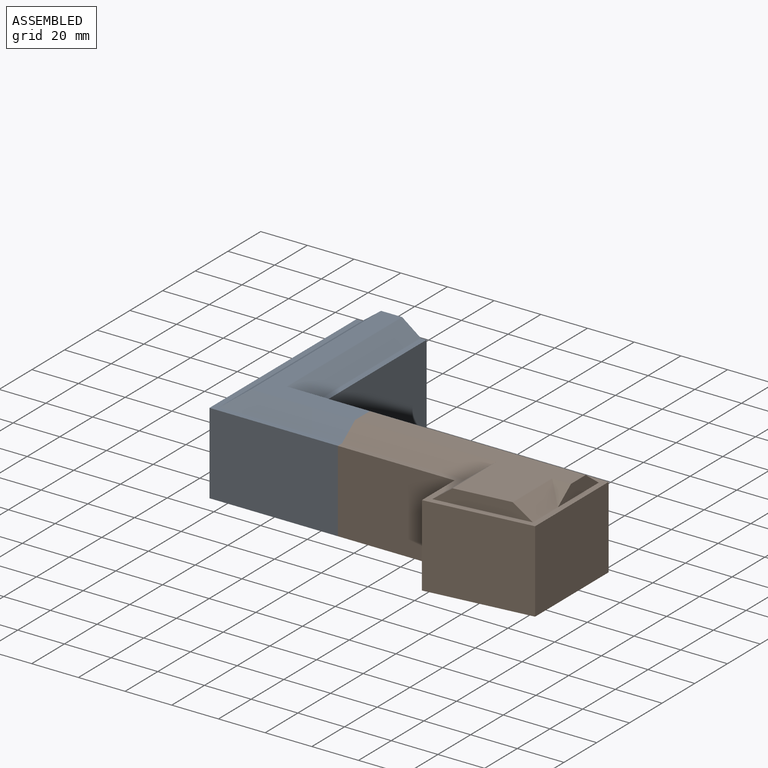
[diagram: assembled view]
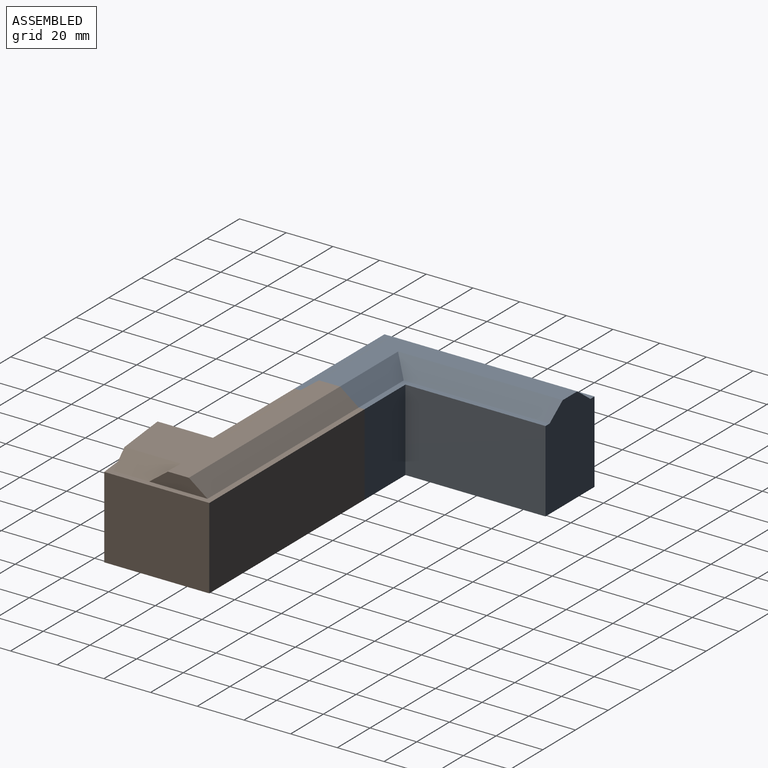
[diagram: assembled view, second angle]
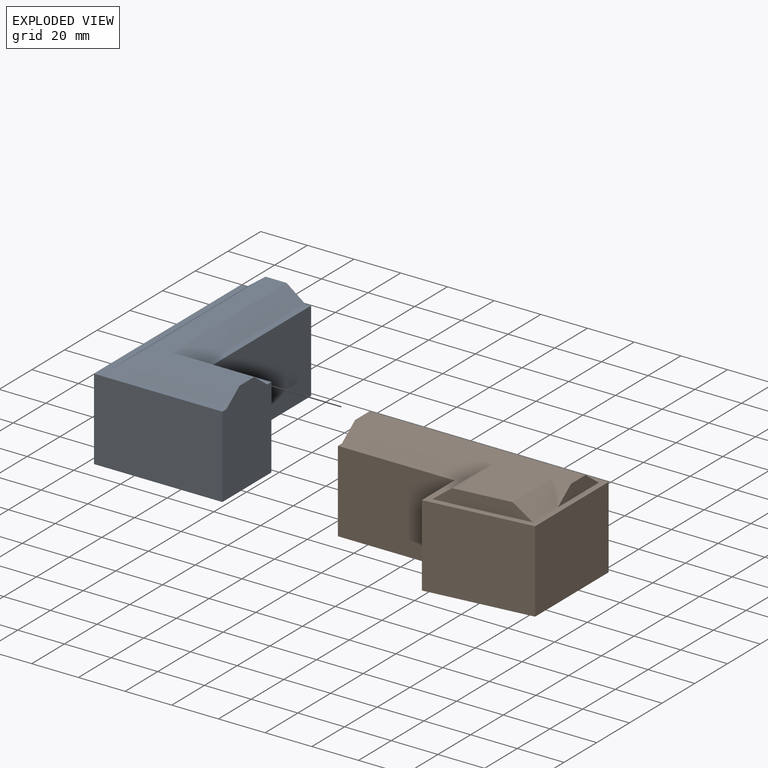
[diagram: exploded view]
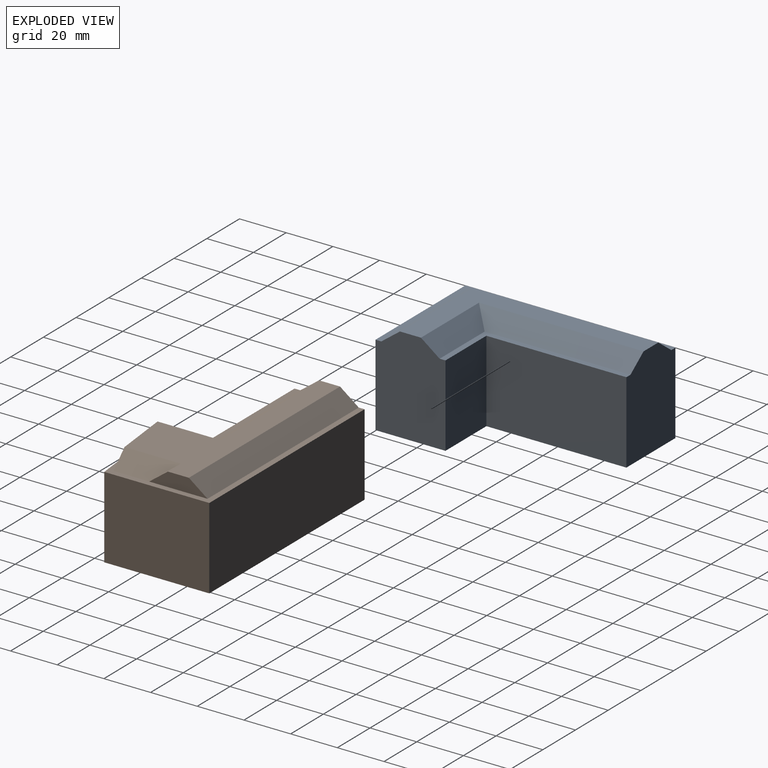
[diagram: exploded view, second angle]
ASSEMBLY  parts=2 mates=3
PART A: 14 faces, bbox 90x55x41 mm
  f0: plane 90x55mm, normal (0,0,1), area 356.2mm2, adj f3,f4,f5,f6,f10,f11
  f1: plane 35x25mm, normal (1,0,0), area 875mm2, adj f2,f6,f7,f8
  f2: plane 60x35mm, normal (0,-1,0), area 2100mm2, adj f1,f3,f7,f8
  f3: plane 41x30mm, normal (1,0,0), area 1152mm2, adj f0,f2,f4,f7,f8,f9,f10,f12
  f4: plane 90x35mm, normal (0,1,0), area 3150mm2, adj f0,f3,f5,f8
  f5: plane 55x35mm, normal (-1,0,0), area 1925mm2, adj f0,f4,f6,f8
  f6: plane 41x30mm, normal (0,-1,0), area 1152mm2, adj f0,f1,f5,f7,f8,f9,f11,f13
  f7: plane 62.5x27.5mm, normal (0,0,1), area 218.7mm2, adj f1,f2,f3,f6,f12,f13
  f8: plane 90x55mm, normal (0,0,-1), area 3450mm2, adj f1,f2,f3,f4,f5,f6
  f9: plane 79.5x44.5mm, normal (0,0,1), area 1035mm2, adj f3,f6,f10,f11,f12,f13
  f10: plane 87.5x8mm, normal (0,0.6,0.8), area 835mm2, adj f0,f3,f9,f11
  f11: plane 52.5x8mm, normal (-0.6,0,0.8), area 485mm2, adj f0,f6,f9,f10
  f12: plane 70.5x8mm, normal (0,-0.6,0.8), area 665mm2, adj f3,f7,f9,f13
  f13: plane 35.5x8mm, normal (0.6,0,0.8), area 315mm2, adj f6,f7,f9,f12
PART B: 16 faces, bbox 95x50x41 mm
  f0: plane 95x50mm, normal (0,0,1), area 625.6mm2, adj f1,f2,f3,f4,f5,f6,f8,f10
  f1: plane 50x35mm, normal (0,-1,0), area 1750mm2, adj f0,f2,f6,f7
  f2: plane 35x20mm, normal (-1,0,0), area 700mm2, adj f0,f1,f3,f7
  f3: plane 45x35mm, normal (0.11,-0.99,0), area 1584.7mm2, adj f0,f2,f4,f7
  f4: plane 45x35mm, normal (1,0,0), area 1575mm2, adj f0,f3,f5,f7
  f5: plane 95x35mm, normal (0,1,0), area 3325mm2, adj f0,f4,f6,f7
  f6: plane 41x30mm, normal (-1,0,0), area 1152mm2, adj f0,f1,f5,f7,f9,f13,f15
  f7: plane 95x50mm, normal (0,0,-1), area 3637.5mm2, adj f1,f2,f3,f4,f5,f6
  f8: plane 40x6mm, normal (0.11,-0.99,0), area 193.2mm2, adj f0,f9,f10,f11
  f9: plane 92.5x35.82mm, normal (0,0,1), area 1444.1mm2, adj f6,f8,f10,f11,f12,f13,f14,f15
  f10: plane 24.15x8mm, normal (0.6,0,0.8), area 197.1mm2, adj f0,f8,f9,f14
  f11: plane 27.71x8mm, normal (-0.6,0,0.8), area 232.6mm2, adj f0,f8,f9,f13
  f12: plane 25x6mm, normal (1,0,0), area 102mm2, adj f0,f9,f14,f15
  f13: plane 60.5x8mm, normal (0,-0.6,0.8), area 565mm2, adj f0,f6,f9,f11
  f14: plane 8x8mm, normal (0,-0.6,0.8), area 40mm2, adj f9,f10,f12
  f15: plane 92.5x8mm, normal (0,0.6,0.8), area 925mm2, adj f0,f6,f9,f12
PLACE A rot(axis=(0,0,1),90deg) t=(-114.14,33.24,4.73)mm
PLACE B t=(-41.64,18.24,4.73)mm fixed
MATE parallel A.f8 <-> B.f7  axis (0,0,-1) through (-114.14,33.24,4.73)mm
MATE parallel A.f6 <-> B.f6  axis (1,0,0) through (-89.14,18.24,24)mm
MATE parallel A.f5 <-> B.f1  axis (0,-1,0) through (-116.64,3.24,22.23)mm
